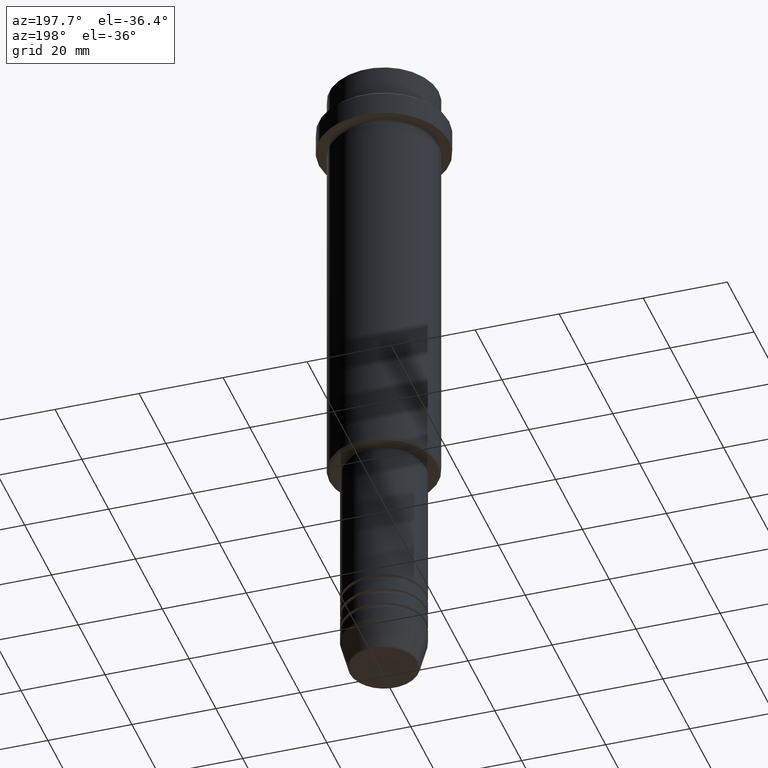
[diagram: clean part render]
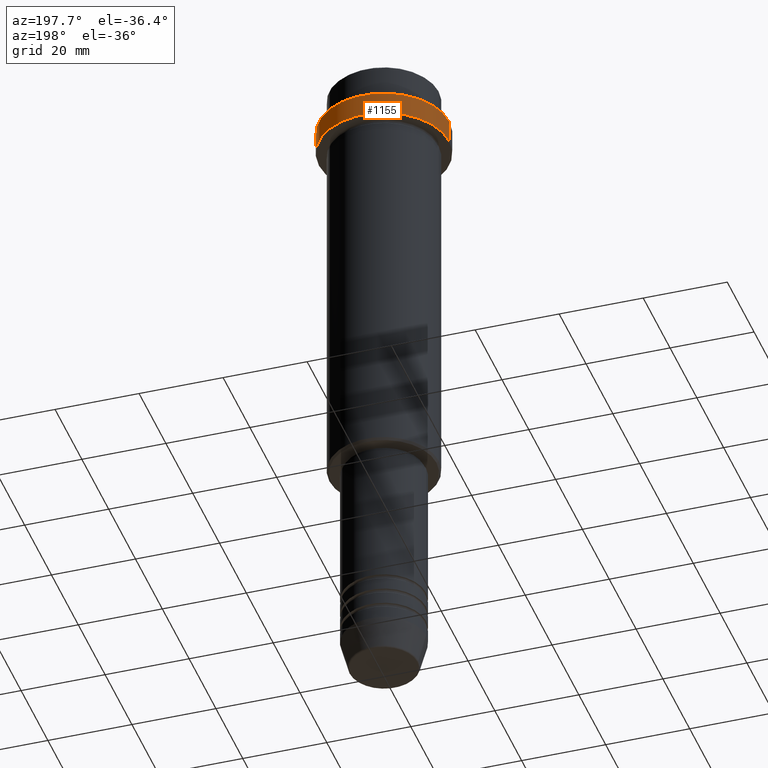
[diagram: same view with one face highlighted and labeled with its STEP entity id]
A machine part, auxiliary view. The second image highlights one B-rep face of the part: STEP entity #1155.
In plain terms, the highlighted cylindrical surface (partial cylindrical patch) has radius 15.5 mm, axis along (-0, -0, 1).
Its self-contained STEP definition (entity closure, byte-faithful):
#37 = DIRECTION ( 'NONE',  ( 1.000000000000000000, 0.000000000000000000, 0.000000000000000000 ) ) ;
#40 = AXIS2_PLACEMENT_3D ( 'NONE', #609, #710, #184 ) ;
#93 = VECTOR ( 'NONE', #214, 1000.000000000000000 ) ;
#184 = DIRECTION ( 'NONE',  ( 1.000000000000000000, 0.000000000000000000, 0.000000000000000000 ) ) ;
#185 = AXIS2_PLACEMENT_3D ( 'NONE', #647, #421, #856 ) ;
#192 = FACE_OUTER_BOUND ( 'NONE', #521, .T. ) ;
#214 = DIRECTION ( 'NONE',  ( -0.000000000000000000, -0.000000000000000000, 1.000000000000000000 ) ) ;
#254 = EDGE_CURVE ( 'NONE', #1352, #707, #605, .T. ) ;
#313 = ORIENTED_EDGE ( 'NONE', *, *, #960, .F. ) ;
#387 = CYLINDRICAL_SURFACE ( 'NONE', #880, 15.50000000000000000 ) ;
#397 = ORIENTED_EDGE ( 'NONE', *, *, #254, .T. ) ;
#421 = DIRECTION ( 'NONE',  ( -0.000000000000000000, -0.000000000000000000, 1.000000000000000000 ) ) ;
#521 = EDGE_LOOP ( 'NONE', ( #1120, #1334, #397, #313 ) ) ;
#523 = LINE ( 'NONE', #1161, #93 ) ;
#586 = CARTESIAN_POINT ( 'NONE',  ( -15.50000000000000000, 1.898202538678397557E-15, -15.00000000000000000 ) ) ;
#599 = DIRECTION ( 'NONE',  ( -0.000000000000000000, -0.000000000000000000, 1.000000000000000000 ) ) ;
#605 = CIRCLE ( 'NONE', #40, 15.50000000000000000 ) ;
#609 = CARTESIAN_POINT ( 'NONE',  ( 0.000000000000000000, 0.000000000000000000, -9.499999999999998224 ) ) ;
#623 = VERTEX_POINT ( 'NONE', #586 ) ;
#647 = CARTESIAN_POINT ( 'NONE',  ( 0.000000000000000000, 0.000000000000000000, -15.00000000000000000 ) ) ;
#650 = EDGE_CURVE ( 'NONE', #623, #1352, #1133, .T. ) ;
#703 = CARTESIAN_POINT ( 'NONE',  ( 15.50000000000000000, 0.000000000000000000, -9.499999999999998224 ) ) ;
#707 = VERTEX_POINT ( 'NONE', #703 ) ;
#710 = DIRECTION ( 'NONE',  ( 0.000000000000000000, 0.000000000000000000, -1.000000000000000000 ) ) ;
#788 = CARTESIAN_POINT ( 'NONE',  ( 0.000000000000000000, 0.000000000000000000, 0.000000000000000000 ) ) ;
#790 = CIRCLE ( 'NONE', #185, 15.50000000000000000 ) ;
#831 = VECTOR ( 'NONE', #1150, 1000.000000000000000 ) ;
#841 = EDGE_CURVE ( 'NONE', #1314, #623, #790, .T. ) ;
#856 = DIRECTION ( 'NONE',  ( 1.000000000000000000, 0.000000000000000000, 0.000000000000000000 ) ) ;
#880 = AXIS2_PLACEMENT_3D ( 'NONE', #788, #599, #37 ) ;
#960 = EDGE_CURVE ( 'NONE', #1314, #707, #523, .T. ) ;
#1061 = CARTESIAN_POINT ( 'NONE',  ( -15.50000000000000000, 1.898202538678397557E-15, -9.499999999999998224 ) ) ;
#1120 = ORIENTED_EDGE ( 'NONE', *, *, #841, .T. ) ;
#1133 = LINE ( 'NONE', #1145, #831 ) ;
#1145 = CARTESIAN_POINT ( 'NONE',  ( -15.50000000000000000, 1.898202538678397557E-15, 0.000000000000000000 ) ) ;
#1150 = DIRECTION ( 'NONE',  ( -0.000000000000000000, -0.000000000000000000, 1.000000000000000000 ) ) ;
#1155 = ADVANCED_FACE ( 'NONE', ( #192 ), #387, .T. ) ;
#1161 = CARTESIAN_POINT ( 'NONE',  ( 15.50000000000000000, 0.000000000000000000, 0.000000000000000000 ) ) ;
#1314 = VERTEX_POINT ( 'NONE', #1399 ) ;
#1334 = ORIENTED_EDGE ( 'NONE', *, *, #650, .T. ) ;
#1352 = VERTEX_POINT ( 'NONE', #1061 ) ;
#1399 = CARTESIAN_POINT ( 'NONE',  ( 15.50000000000000000, 0.000000000000000000, -15.00000000000000000 ) ) ;